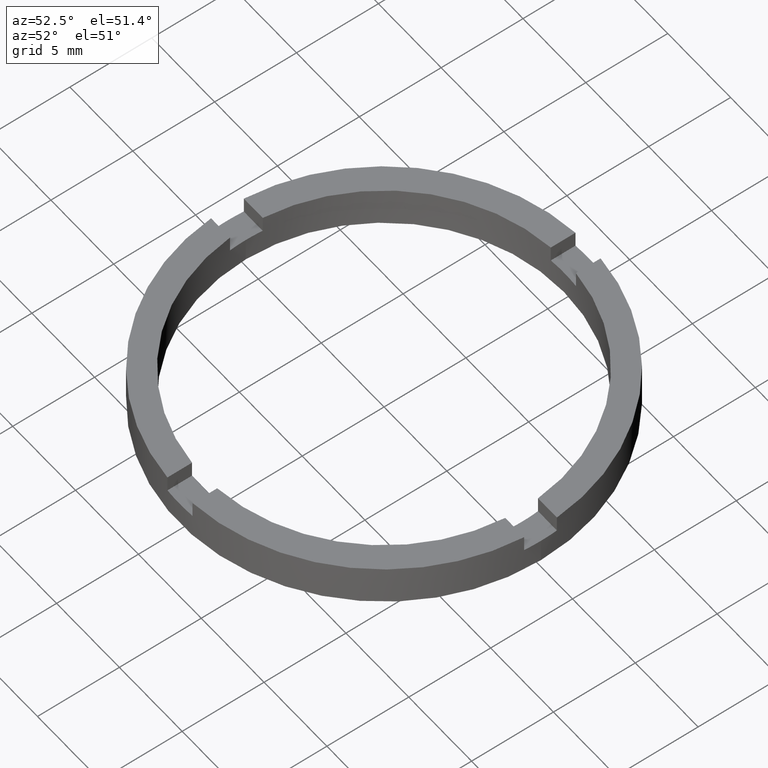
[diagram: clean part render]
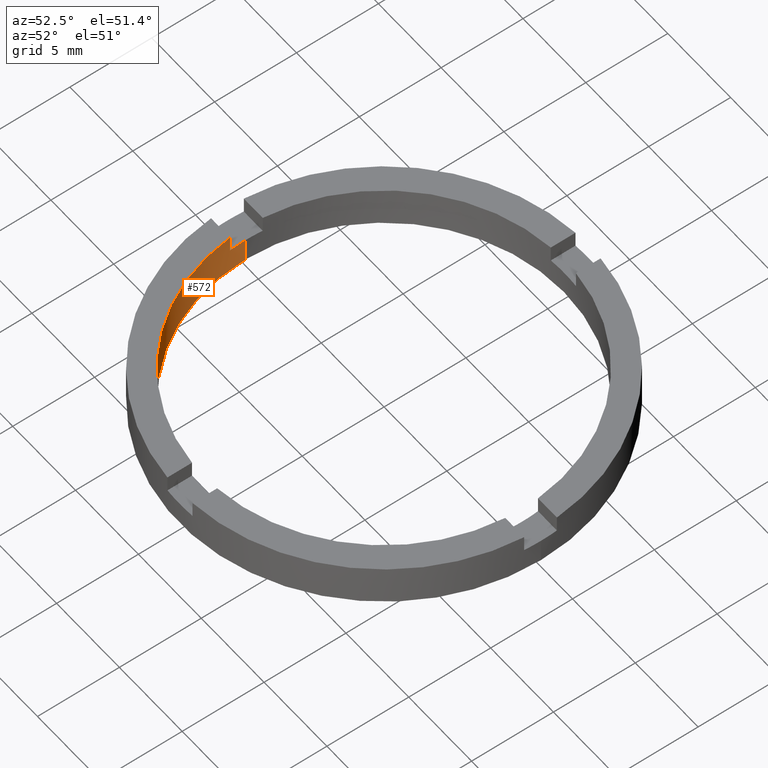
[diagram: same view with one face highlighted and labeled with its STEP entity id]
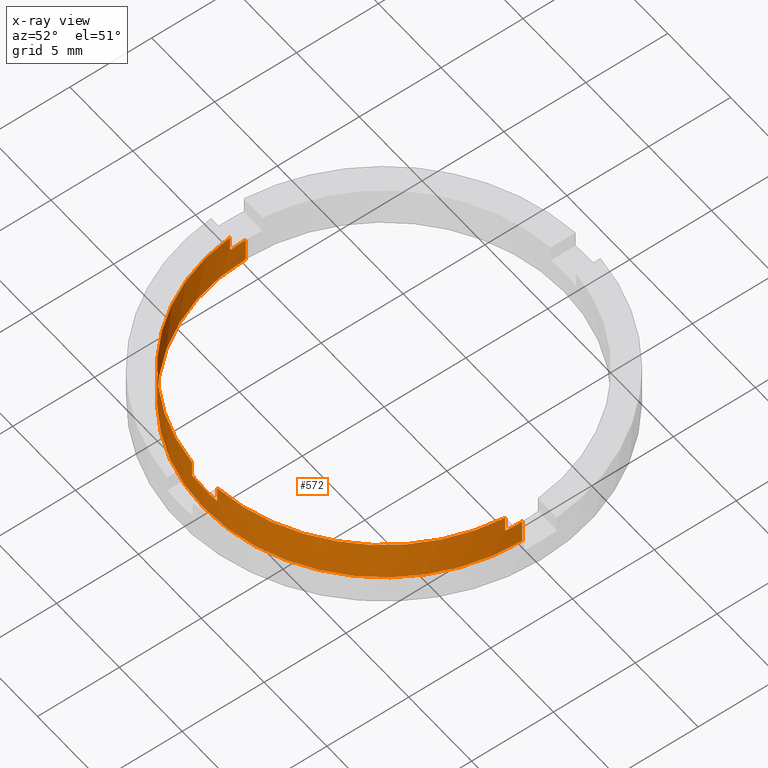
[diagram: x-ray of the same camera — body ghosted, the highlighted face saturated]
A machine part, auxiliary view. The second image highlights one B-rep face of the part: STEP entity #572.
The next image is the same camera in x-ray: the body ghosted, the highlighted face saturated — about 0% of this face is hidden behind the body in this view.
In plain terms, the highlighted cylindrical surface (partial cylindrical patch) has radius 11 mm, axis along (-0, -0, -1).
Its self-contained STEP definition (entity closure, byte-faithful):
#3 = CARTESIAN_POINT ( 'NONE',  ( 0.000000000000000000, 0.000000000000000000, 2.500000000000000000 ) ) ;
#4 = CARTESIAN_POINT ( 'NONE',  ( 0.000000000000000000, 0.000000000000000000, 2.500000000000000000 ) ) ;
#5 = EDGE_CURVE ( 'NONE', #246, #132, #645, .T. ) ;
#7 = DIRECTION ( 'NONE',  ( -0.000000000000000000, -0.000000000000000000, -1.000000000000000000 ) ) ;
#29 = DIRECTION ( 'NONE',  ( 1.000000000000000000, 0.000000000000000000, 0.000000000000000000 ) ) ;
#42 = AXIS2_PLACEMENT_3D ( 'NONE', #4, #592, #424 ) ;
#46 = EDGE_CURVE ( 'NONE', #138, #360, #118, .T. ) ;
#47 = CARTESIAN_POINT ( 'NONE',  ( -11.00000000000000000, 0.000000000000000000, 0.000000000000000000 ) ) ;
#49 = AXIS2_PLACEMENT_3D ( 'NONE', #605, #762, #29 ) ;
#58 = EDGE_CURVE ( 'NONE', #246, #746, #431, .T. ) ;
#66 = CARTESIAN_POINT ( 'NONE',  ( -10.95445115010331882, -1.000000000000021982, 2.500000000000000000 ) ) ;
#69 = CARTESIAN_POINT ( 'NONE',  ( -11.00000000000000000, 0.000000000000000000, 2.500000000000000000 ) ) ;
#74 = DIRECTION ( 'NONE',  ( -1.000000000000000000, 0.000000000000000000, 0.000000000000000000 ) ) ;
#116 = FACE_OUTER_BOUND ( 'NONE', #753, .T. ) ;
#118 = CIRCLE ( 'NONE', #674, 11.00000000000000000 ) ;
#132 = VERTEX_POINT ( 'NONE', #717 ) ;
#138 = VERTEX_POINT ( 'NONE', #47 ) ;
#142 = LINE ( 'NONE', #387, #189 ) ;
#159 = LINE ( 'NONE', #541, #447 ) ;
#168 = CARTESIAN_POINT ( 'NONE',  ( -1.000000000000163647, -10.95445115010330639, 2.500000000000000000 ) ) ;
#178 = CARTESIAN_POINT ( 'NONE',  ( 0.000000000000000000, 0.000000000000000000, 0.000000000000000000 ) ) ;
#185 = CYLINDRICAL_SURFACE ( 'NONE', #504, 11.00000000000000000 ) ;
#189 = VECTOR ( 'NONE', #7, 1000.000000000000000 ) ;
#201 = CIRCLE ( 'NONE', #350, 11.00000000000000000 ) ;
#205 = EDGE_CURVE ( 'NONE', #666, #138, #706, .T. ) ;
#207 = DIRECTION ( 'NONE',  ( -0.000000000000000000, -0.000000000000000000, -1.000000000000000000 ) ) ;
#220 = CARTESIAN_POINT ( 'NONE',  ( 0.9999999999998363531, -10.95445115010333659, 2.500000000000000000 ) ) ;
#226 = VERTEX_POINT ( 'NONE', #220 ) ;
#228 = ORIENTED_EDGE ( 'NONE', *, *, #46, .F. ) ;
#244 = DIRECTION ( 'NONE',  ( 0.000000000000000000, 0.000000000000000000, 1.000000000000000000 ) ) ;
#246 = VERTEX_POINT ( 'NONE', #367 ) ;
#255 = DIRECTION ( 'NONE',  ( 1.000000000000000000, 0.000000000000000000, 0.000000000000000000 ) ) ;
#264 = CARTESIAN_POINT ( 'NONE',  ( -10.95445115010331882, -1.000000000000021982, 2.500000000000000000 ) ) ;
#269 = ORIENTED_EDGE ( 'NONE', *, *, #430, .T. ) ;
#270 = EDGE_CURVE ( 'NONE', #673, #641, #454, .T. ) ;
#275 = VECTOR ( 'NONE', #493, 1000.000000000000000 ) ;
#281 = DIRECTION ( 'NONE',  ( 0.000000000000000000, 0.000000000000000000, 1.000000000000000000 ) ) ;
#291 = LINE ( 'NONE', #295, #275 ) ;
#292 = DIRECTION ( 'NONE',  ( 1.000000000000000000, 0.000000000000000000, 0.000000000000000000 ) ) ;
#295 = CARTESIAN_POINT ( 'NONE',  ( 11.00000000000000000, 1.347111479062088405E-15, 2.500000000000000000 ) ) ;
#304 = CARTESIAN_POINT ( 'NONE',  ( 10.95445115010330639, -1.000000000000159872, 2.500000000000000000 ) ) ;
#309 = CARTESIAN_POINT ( 'NONE',  ( 0.000000000000000000, 0.000000000000000000, 1.500000000000000000 ) ) ;
#328 = DIRECTION ( 'NONE',  ( -0.000000000000000000, -0.000000000000000000, -1.000000000000000000 ) ) ;
#341 = AXIS2_PLACEMENT_3D ( 'NONE', #309, #553, #593 ) ;
#348 = EDGE_CURVE ( 'NONE', #778, #759, #201, .T. ) ;
#350 = AXIS2_PLACEMENT_3D ( 'NONE', #613, #757, #292 ) ;
#357 = CIRCLE ( 'NONE', #49, 11.00000000000000000 ) ;
#360 = VERTEX_POINT ( 'NONE', #456 ) ;
#367 = CARTESIAN_POINT ( 'NONE',  ( -1.000000000000163647, -10.95445115010330639, 1.500000000000000000 ) ) ;
#387 = CARTESIAN_POINT ( 'NONE',  ( 0.9999999999998363531, -10.95445115010333659, 2.500000000000000000 ) ) ;
#409 = CIRCLE ( 'NONE', #42, 11.00000000000000000 ) ;
#422 = ORIENTED_EDGE ( 'NONE', *, *, #775, .T. ) ;
#424 = DIRECTION ( 'NONE',  ( 1.000000000000000000, 0.000000000000000000, 0.000000000000000000 ) ) ;
#427 = VECTOR ( 'NONE', #244, 1000.000000000000000 ) ;
#430 = EDGE_CURVE ( 'NONE', #226, #512, #357, .T. ) ;
#431 = LINE ( 'NONE', #578, #427 ) ;
#433 = CARTESIAN_POINT ( 'NONE',  ( 0.000000000000000000, 0.000000000000000000, 1.500000000000000000 ) ) ;
#444 = VECTOR ( 'NONE', #207, 1000.000000000000000 ) ;
#447 = VECTOR ( 'NONE', #539, 1000.000000000000000 ) ;
#454 = LINE ( 'NONE', #264, #444 ) ;
#456 = CARTESIAN_POINT ( 'NONE',  ( 11.00000000000000000, 1.347111479062088405E-15, 0.000000000000000000 ) ) ;
#465 = EDGE_CURVE ( 'NONE', #673, #746, #409, .T. ) ;
#478 = DIRECTION ( 'NONE',  ( 1.000000000000000000, 0.000000000000000000, 0.000000000000000000 ) ) ;
#479 = DIRECTION ( 'NONE',  ( -0.000000000000000000, -0.000000000000000000, -1.000000000000000000 ) ) ;
#493 = DIRECTION ( 'NONE',  ( -0.000000000000000000, -0.000000000000000000, -1.000000000000000000 ) ) ;
#504 = AXIS2_PLACEMENT_3D ( 'NONE', #3, #479, #74 ) ;
#512 = VERTEX_POINT ( 'NONE', #304 ) ;
#521 = ORIENTED_EDGE ( 'NONE', *, *, #465, .T. ) ;
#526 = ORIENTED_EDGE ( 'NONE', *, *, #752, .T. ) ;
#528 = AXIS2_PLACEMENT_3D ( 'NONE', #433, #546, #255 ) ;
#539 = DIRECTION ( 'NONE',  ( 0.000000000000000000, 0.000000000000000000, 1.000000000000000000 ) ) ;
#541 = CARTESIAN_POINT ( 'NONE',  ( 10.95445115010330639, -1.000000000000159872, 2.500000000000000000 ) ) ;
#546 = DIRECTION ( 'NONE',  ( 0.000000000000000000, 0.000000000000000000, 1.000000000000000000 ) ) ;
#553 = DIRECTION ( 'NONE',  ( -0.000000000000000000, 0.000000000000000000, 1.000000000000000000 ) ) ;
#559 = CIRCLE ( 'NONE', #528, 11.00000000000000000 ) ;
#572 = ADVANCED_FACE ( 'NONE', ( #116 ), #185, .F. ) ;
#578 = CARTESIAN_POINT ( 'NONE',  ( -1.000000000000163647, -10.95445115010330639, 2.500000000000000000 ) ) ;
#580 = EDGE_CURVE ( 'NONE', #226, #132, #142, .T. ) ;
#582 = EDGE_CURVE ( 'NONE', #778, #512, #159, .T. ) ;
#592 = DIRECTION ( 'NONE',  ( 0.000000000000000000, 0.000000000000000000, 1.000000000000000000 ) ) ;
#593 = DIRECTION ( 'NONE',  ( 1.000000000000000000, 0.000000000000000000, 0.000000000000000000 ) ) ;
#604 = CARTESIAN_POINT ( 'NONE',  ( -11.00000000000000000, 0.000000000000000000, 1.500000000000000000 ) ) ;
#605 = CARTESIAN_POINT ( 'NONE',  ( 0.000000000000000000, 0.000000000000000000, 2.500000000000000000 ) ) ;
#613 = CARTESIAN_POINT ( 'NONE',  ( 0.000000000000000000, 0.000000000000000000, 1.500000000000000000 ) ) ;
#628 = ORIENTED_EDGE ( 'NONE', *, *, #58, .F. ) ;
#641 = VERTEX_POINT ( 'NONE', #773 ) ;
#645 = CIRCLE ( 'NONE', #341, 11.00000000000000000 ) ;
#649 = CARTESIAN_POINT ( 'NONE',  ( 11.00000000000000000, 1.347111479062088405E-15, 1.500000000000000000 ) ) ;
#666 = VERTEX_POINT ( 'NONE', #604 ) ;
#673 = VERTEX_POINT ( 'NONE', #66 ) ;
#674 = AXIS2_PLACEMENT_3D ( 'NONE', #178, #281, #478 ) ;
#706 = LINE ( 'NONE', #69, #707 ) ;
#707 = VECTOR ( 'NONE', #328, 1000.000000000000000 ) ;
#715 = CARTESIAN_POINT ( 'NONE',  ( 10.95445115010330639, -1.000000000000159872, 1.500000000000000000 ) ) ;
#717 = CARTESIAN_POINT ( 'NONE',  ( 0.9999999999998363531, -10.95445115010333659, 1.500000000000000000 ) ) ;
#742 = ORIENTED_EDGE ( 'NONE', *, *, #580, .F. ) ;
#744 = ORIENTED_EDGE ( 'NONE', *, *, #582, .F. ) ;
#746 = VERTEX_POINT ( 'NONE', #168 ) ;
#752 = EDGE_CURVE ( 'NONE', #759, #360, #291, .T. ) ;
#753 = EDGE_LOOP ( 'NONE', ( #766, #526, #228, #776, #422, #761, #521, #628, #756, #742, #269, #744 ) ) ;
#756 = ORIENTED_EDGE ( 'NONE', *, *, #5, .T. ) ;
#757 = DIRECTION ( 'NONE',  ( 0.000000000000000000, 0.000000000000000000, 1.000000000000000000 ) ) ;
#759 = VERTEX_POINT ( 'NONE', #649 ) ;
#761 = ORIENTED_EDGE ( 'NONE', *, *, #270, .F. ) ;
#762 = DIRECTION ( 'NONE',  ( 0.000000000000000000, 0.000000000000000000, 1.000000000000000000 ) ) ;
#766 = ORIENTED_EDGE ( 'NONE', *, *, #348, .T. ) ;
#773 = CARTESIAN_POINT ( 'NONE',  ( -10.95445115010331882, -1.000000000000021982, 1.500000000000000000 ) ) ;
#775 = EDGE_CURVE ( 'NONE', #666, #641, #559, .T. ) ;
#776 = ORIENTED_EDGE ( 'NONE', *, *, #205, .F. ) ;
#778 = VERTEX_POINT ( 'NONE', #715 ) ;